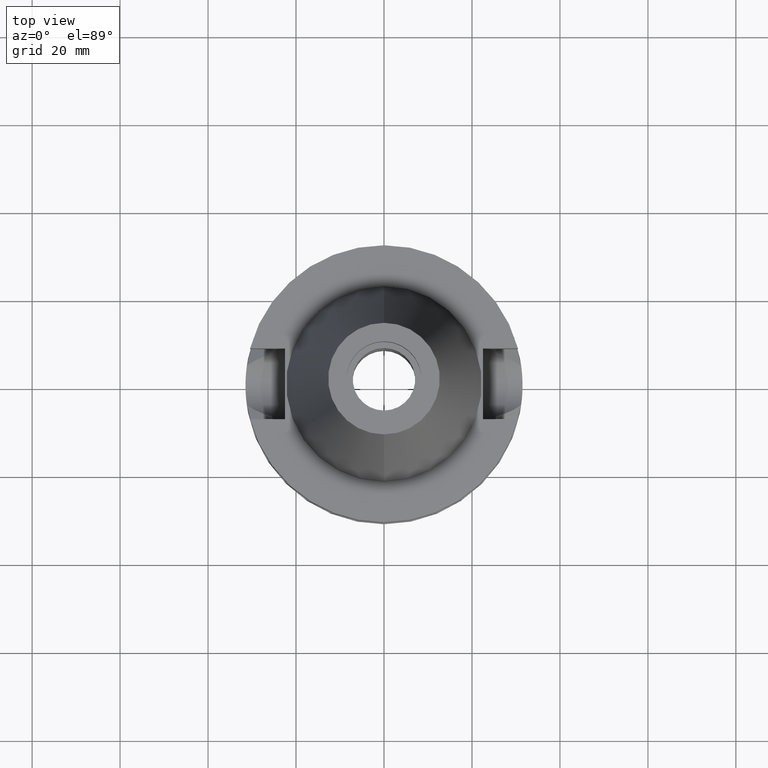
[diagram: clean part render]
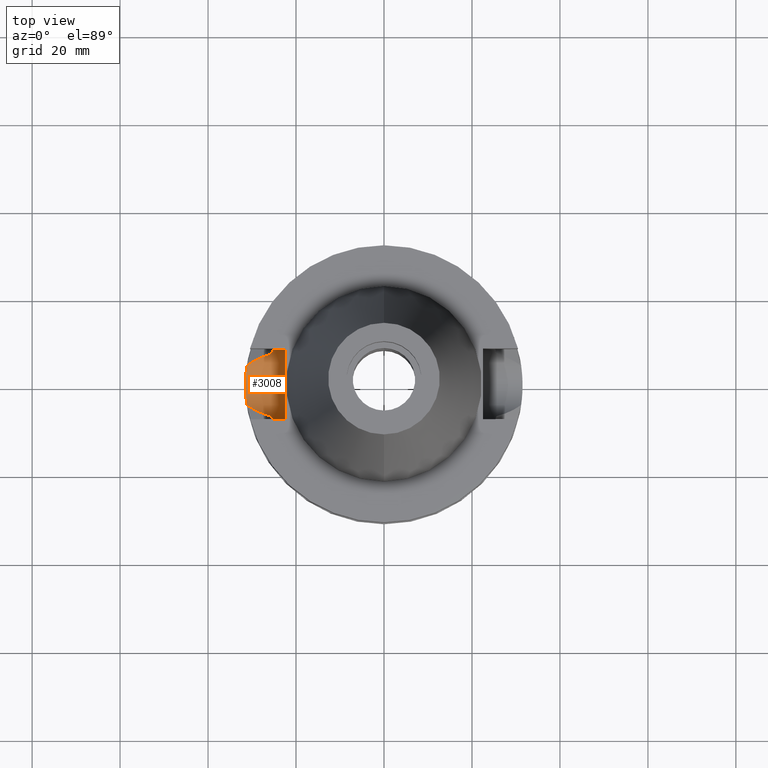
[diagram: same view with one face highlighted and labeled with its STEP entity id]
A machine part, top view. The second image highlights one B-rep face of the part: STEP entity #3008.
In plain terms, the highlighted cylindrical surface (edge-blend (fillet) strip) has radius 8.05 mm, axis along (-1, 0, 0).
Its self-contained STEP definition (entity closure, byte-faithful):
#177=CARTESIAN_POINT('',(-2.25E1,1.807578675541E-14,-1.495E1));
#178=DIRECTION('',(1.E0,0.E0,0.E0));
#179=DIRECTION('',(0.E0,-1.E0,1.919789379228E-14));
#180=AXIS2_PLACEMENT_3D('',#177,#178,#179);
#185=CARTESIAN_POINT('',(-2.25E1,1.807578675541E-14,-1.495E1));
#186=DIRECTION('',(1.E0,0.E0,0.E0));
#187=DIRECTION('',(0.E0,0.E0,-1.E0));
#188=AXIS2_PLACEMENT_3D('',#185,#186,#187);
#241=CARTESIAN_POINT('',(-2.553175183775E1,-7.097862220093E0,
-1.874774300139E1));
#242=CARTESIAN_POINT('',(-2.547268458766E1,-7.310333288734E0,
-1.835064125690E1));
#243=CARTESIAN_POINT('',(-2.536978932798E1,-7.660659993583E0,
-1.753821801323E1));
#244=CARTESIAN_POINT('',(-2.527039941148E1,-7.979415271053E0,
-1.625525072301E1));
#245=CARTESIAN_POINT('',(-2.524772266958E1,-8.05E0,-1.538871362008E1));
#246=CARTESIAN_POINT('',(-2.524772266958E1,-8.05E0,-1.495E1));
#361=CARTESIAN_POINT('',(-2.524772266958E1,8.05E0,-1.495E1));
#362=CARTESIAN_POINT('',(-2.524772266958E1,8.05E0,-1.538877714201E1));
#363=CARTESIAN_POINT('',(-2.527040623778E1,7.979394001986E0,-1.625539825033E1));
#364=CARTESIAN_POINT('',(-2.536980332822E1,7.660613844219E0,-1.753834283841E1));
#365=CARTESIAN_POINT('',(-2.547269200039E1,7.310306624384E0,-1.835069109173E1));
#366=CARTESIAN_POINT('',(-2.553175183775E1,7.097862220093E0,-1.874774300139E1));
#444=CARTESIAN_POINT('',(-3.117899877609E1,4.485536235554E0,-2.163449434733E1));
#445=CARTESIAN_POINT('',(-3.092699572936E1,4.676723045763E0,-2.150620111820E1));
#446=CARTESIAN_POINT('',(-3.037704794003E1,5.058447514772E0,-2.122611318917E1));
#447=CARTESIAN_POINT('',(-2.941603995076E1,5.613847051818E0,-2.073612037933E1));
#448=CARTESIAN_POINT('',(-2.830215788924E1,6.147747117253E0,-2.016735905456E1));
#449=CARTESIAN_POINT('',(-2.702522019392E1,6.649226031568E0,-1.951411904282E1));
#450=CARTESIAN_POINT('',(-2.604943356764E1,6.955560383381E0,-1.901370065842E1));
#451=CARTESIAN_POINT('',(-2.553175183775E1,7.097862220093E0,-1.874774300139E1));
#456=DIRECTION('',(1.E0,1.551559937893E-14,-3.620306521750E-14));
#457=VECTOR('',#456,2.747722669580E0);
#458=CARTESIAN_POINT('',(-2.524772266958E1,8.05E0,-1.495E1));
#459=LINE('',#458,#457);
#463=DIRECTION('',(-1.E0,1.616208268639E-14,-1.034373291929E-14));
#464=VECTOR('',#463,2.747722669580E0);
#465=CARTESIAN_POINT('',(-2.25E1,-8.05E0,-1.495E1));
#466=LINE('',#465,#464);
#470=CARTESIAN_POINT('',(-3.117899877609E1,-4.485536235554E0,
-2.163449434733E1));
#471=CARTESIAN_POINT('',(-3.081769863940E1,-4.759643320996E0,
-2.145055862979E1));
#472=CARTESIAN_POINT('',(-3.002825092628E1,-5.292401626056E0,
-2.104847164175E1));
#473=CARTESIAN_POINT('',(-2.847539734479E1,-6.083327965120E0,
-2.025600677364E1));
#474=CARTESIAN_POINT('',(-2.704755671412E1,-6.642747451730E0,
-1.952560059844E1));
#475=CARTESIAN_POINT('',(-2.603745654607E1,-6.958852661376E0,
-1.900754749440E1));
#476=CARTESIAN_POINT('',(-2.553175183775E1,-7.097862220093E0,
-1.874774300139E1));
#608=CARTESIAN_POINT('',(-3.117899877609E1,4.485536235554E0,-2.163449434733E1));
#609=CARTESIAN_POINT('',(-3.124423357808E1,4.032088597536E0,-2.193877402887E1));
#610=CARTESIAN_POINT('',(-3.135971202356E1,3.088611271718E0,-2.243951042622E1));
#611=CARTESIAN_POINT('',(-3.147335039534E1,1.577609785830E0,-2.289666088954E1));
#612=CARTESIAN_POINT('',(-3.151358178442E1,-1.104147918731E-2,
-2.305267738941E1));
#613=CARTESIAN_POINT('',(-3.147231200138E1,-1.596340580389E0,
-2.289259003372E1));
#614=CARTESIAN_POINT('',(-3.135844480018E1,-3.099975252081E0,
-2.243419198236E1));
#615=CARTESIAN_POINT('',(-3.124366543948E1,-4.036037733525E0,
-2.193612401652E1));
#616=CARTESIAN_POINT('',(-3.117899877609E1,-4.485536235554E0,
-2.163449434733E1));
#2570=VERTEX_POINT('',#470);
#2571=VERTEX_POINT('',#476);
#2574=VERTEX_POINT('',#444);
#2575=VERTEX_POINT('',#451);
#2578=VERTEX_POINT('',#361);
#2579=CARTESIAN_POINT('',(-2.25E1,8.05E0,-1.495E1));
#2580=VERTEX_POINT('',#2579);
#2581=CARTESIAN_POINT('',(-2.25E1,1.856870709207E-14,-2.3E1));
#2582=VERTEX_POINT('',#2581);
#2583=CARTESIAN_POINT('',(-2.25E1,-8.05E0,-1.495E1));
#2584=VERTEX_POINT('',#2583);
#2585=CARTESIAN_POINT('',(-2.524772266958E1,-8.05E0,-1.495E1));
#2586=VERTEX_POINT('',#2585);
#2989=CARTESIAN_POINT('',(-2.25E1,1.807578675541E-14,-1.495E1));
#2990=DIRECTION('',(-1.E0,0.E0,0.E0));
#2991=DIRECTION('',(0.E0,0.E0,-1.E0));
#2992=AXIS2_PLACEMENT_3D('',#2989,#2990,#2991);
#2993=CYLINDRICAL_SURFACE('',#2992,8.05E0);
#2995=ORIENTED_EDGE('',*,*,#2994,.F.);
#2997=ORIENTED_EDGE('',*,*,#2996,.F.);
#2999=ORIENTED_EDGE('',*,*,#2998,.T.);
#3000=ORIENTED_EDGE('',*,*,#2926,.F.);
#3001=ORIENTED_EDGE('',*,*,#2954,.T.);
#3002=ORIENTED_EDGE('',*,*,#2789,.F.);
#3003=ORIENTED_EDGE('',*,*,#2787,.F.);
#3004=ORIENTED_EDGE('',*,*,#2803,.T.);
#3005=ORIENTED_EDGE('',*,*,#2832,.F.);
#3006=EDGE_LOOP('',(#2995,#2997,#2999,#3000,#3001,#3002,#3003,#3004,#3005));
#3007=FACE_OUTER_BOUND('',#3006,.F.);
#181=CIRCLE('',#180,8.05E0);
#189=CIRCLE('',#188,8.05E0);
#247=B_SPLINE_CURVE_WITH_KNOTS('',3,(#241,#242,#243,#244,#245,#246),
.UNSPECIFIED.,.F.,.F.,(4,1,1,4),(0.E0,3.333333333333E-1,6.666666666667E-1,1.E0),
.UNSPECIFIED.);
#367=B_SPLINE_CURVE_WITH_KNOTS('',3,(#361,#362,#363,#364,#365,#366),
.UNSPECIFIED.,.F.,.F.,(4,1,1,4),(0.E0,3.333333333333E-1,6.666666666667E-1,1.E0),
.UNSPECIFIED.);
#452=B_SPLINE_CURVE_WITH_KNOTS('',3,(#444,#445,#446,#447,#448,#449,#450,#451),
.UNSPECIFIED.,.F.,.F.,(4,1,1,1,1,4),(0.E0,2.E-1,4.E-1,6.E-1,8.E-1,1.E0),
.UNSPECIFIED.);
#477=B_SPLINE_CURVE_WITH_KNOTS('',3,(#470,#471,#472,#473,#474,#475,#476),
.UNSPECIFIED.,.F.,.F.,(4,1,1,1,4),(0.E0,2.5E-1,5.E-1,7.5E-1,1.E0),
.UNSPECIFIED.);
#617=B_SPLINE_CURVE_WITH_KNOTS('',3,(#608,#609,#610,#611,#612,#613,#614,#615,
#616),.UNSPECIFIED.,.F.,.F.,(4,1,1,1,1,1,4),(0.E0,1.666666666667E-1,
3.333333333333E-1,5.E-1,6.666666666667E-1,8.333333333333E-1,1.E0),
.UNSPECIFIED.);
#2787=EDGE_CURVE('',#2584,#2582,#181,.T.);
#2789=EDGE_CURVE('',#2582,#2580,#189,.T.);
#2803=EDGE_CURVE('',#2584,#2586,#466,.T.);
#2832=EDGE_CURVE('',#2571,#2586,#247,.T.);
#2926=EDGE_CURVE('',#2578,#2575,#367,.T.);
#2954=EDGE_CURVE('',#2578,#2580,#459,.T.);
#2994=EDGE_CURVE('',#2570,#2571,#477,.T.);
#2996=EDGE_CURVE('',#2574,#2570,#617,.T.);
#2998=EDGE_CURVE('',#2574,#2575,#452,.T.);
#3008=ADVANCED_FACE('',(#3007),#2993,.F.);